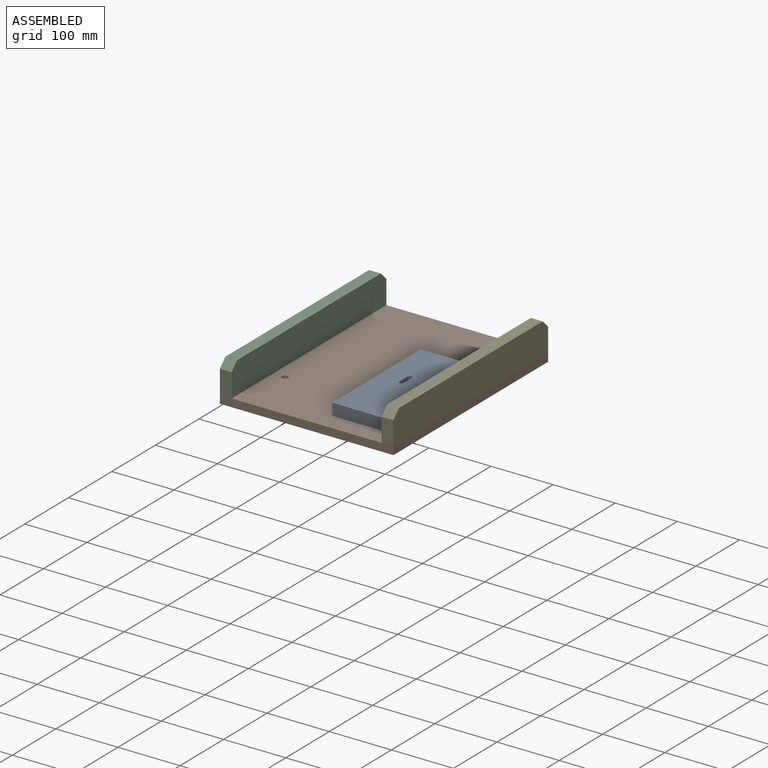
[diagram: assembled view]
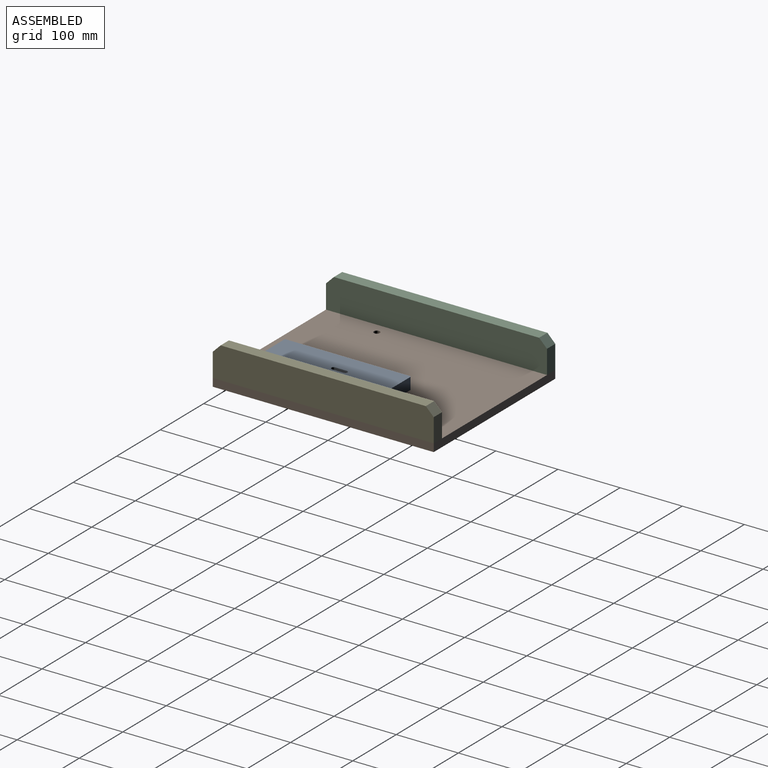
[diagram: assembled view, second angle]
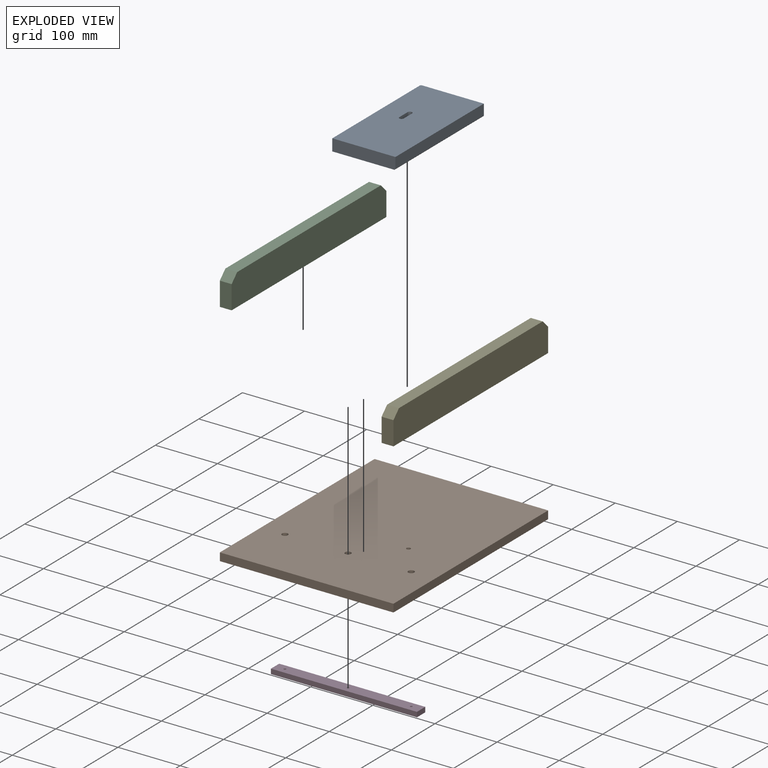
[diagram: exploded view]
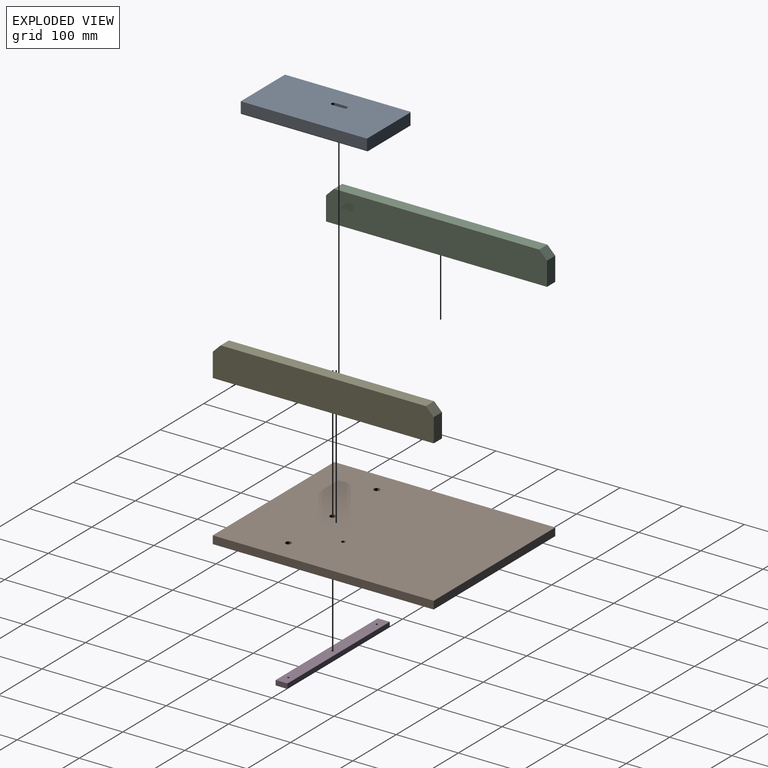
[diagram: exploded view, second angle]
ASSEMBLY  parts=5 mates=4
PART A: 12 faces, bbox 101.6x203.2x19.1 mm
  f0: plane 203.2x101.6mm, normal (0,0,1), area 20467.9mm2, adj f2,f3,f4,f5,f7,f8,f9,f10
  f1: plane 203.2x100.01mm, normal (0,0,-1), area 20145.3mm2, adj f2,f4,f5,f6,f7,f8,f9,f10
  f2: plane 101.6x19.05mm, normal (0,-1,0), area 1934.2mm2, adj f0,f1,f3,f5,f6
  f3: plane 203.2x17.46mm, normal (1,0,0), area 3548.4mm2, adj f0,f2,f4,f6
  f4: plane 100.01x19.05mm, normal (0,1,0), area 1904mm2, adj f0,f1,f3,f6,f7
  f5: plane 201.61x19.05mm, normal (-1,0,0), area 3840.7mm2, adj f0,f1,f2,f7
  f6: plane 203.2x1.59mm, normal (0.71,0,-0.71), area 456.2mm2, adj f1,f2,f3,f4
  f7: plane 19.05x1.59mm, normal (-0.71,0.71,0), area 42.8mm2, adj f0,f1,f4,f5
  f8: plane 19.05x19.05mm, normal (-1,0,0), area 362.9mm2, adj f0,f1,f9,f11
  f9: cylinder r=3.57mm len=19.05mm, axis (0,0,1), area 213.6mm2, adj f0,f1,f8,f10
  f10: plane 19.05x19.05mm, normal (1,0,0), area 362.9mm2, adj f0,f1,f9,f11
  f11: cylinder r=3.57mm len=19.05mm, axis (0,0,1), area 213.6mm2, adj f0,f1,f8,f10
PART B: 18 faces, bbox 279.4x355.6x12.7 mm
  f0: plane 355.6x12.7mm, normal (1,0,0), area 4516.1mm2, adj f1,f3,f4,f5
  f1: plane 279.4x12.7mm, normal (0,1,0), area 3548.4mm2, adj f0,f2,f4,f5
  f2: plane 355.6x12.7mm, normal (-1,0,0), area 4516.1mm2, adj f1,f3,f4,f5
  f3: plane 279.4x12.7mm, normal (0,-1,0), area 3548.4mm2, adj f0,f2,f4,f5
  f4: plane 355.6x279.4mm, normal (0,0,1), area 99109.2mm2, adj f0,f1,f2,f3,f8,f11,f14,f15
  f5: plane 355.6x279.4mm, normal (0,0,-1), area 99053.7mm2, adj f0,f1,f2,f3,f6,f9,f12,f17
  f6: cylinder r=2.55mm len=5.11mm, axis (0,0,1), area 76.4mm2, adj f5,f7
  f7: plane 9.53x9.53mm, normal (0,0,1), area 50.8mm2, adj f6,f8
  f8: cylinder r=4.76mm len=9.53mm, axis (0,0,1), area 237.5mm2, adj f4,f7
  f9: cylinder r=2.55mm len=5.11mm, axis (0,0,1), area 76.4mm2, adj f5,f10
  f10: plane 9.53x9.53mm, normal (0,0,1), area 50.8mm2, adj f9,f11
  f11: cylinder r=4.76mm len=9.53mm, axis (0,0,1), area 237.5mm2, adj f4,f10
  f12: cylinder r=2.55mm len=5.11mm, axis (0,0,1), area 76.4mm2, adj f5,f13
  f13: plane 9.53x9.53mm, normal (0,0,1), area 50.8mm2, adj f12,f14
  f14: cylinder r=4.76mm len=9.53mm, axis (0,0,1), area 237.5mm2, adj f4,f13
  f15: cylinder r=3.17mm len=9.53mm, axis (0,0,-1), area 190mm2, adj f4,f16
  f16: plane 17.46x17.46mm, normal (0,0,-1), area 207.8mm2, adj f15,f17
  f17: cylinder r=8.73mm len=17.46mm, axis (0,0,-1), area 174.2mm2, adj f5,f16
PART C: 8 faces, bbox 355.6x50.8x19.1 mm
  f0: plane 38.1x19.05mm, normal (-1,0,0), area 725.8mm2, adj f1,f4,f5,f7
  f1: plane 355.6x19.05mm, normal (0,-1,0), area 6774.2mm2, adj f0,f2,f4,f5
  f2: plane 38.1x19.05mm, normal (1,0,0), area 725.8mm2, adj f1,f4,f5,f6
  f3: plane 330.2x19.05mm, normal (0,1,0), area 6290.3mm2, adj f4,f5,f6,f7
  f4: plane 355.6x50.8mm, normal (0,0,1), area 17903.2mm2, adj f0,f1,f2,f3,f6,f7
  f5: plane 355.6x50.8mm, normal (0,0,-1), area 17903.2mm2, adj f0,f1,f2,f3,f6,f7
  f6: plane 19.05x12.7mm, normal (0.71,0.71,0), area 342.1mm2, adj f2,f3,f4,f5
  f7: plane 19.05x12.7mm, normal (-0.71,0.71,0), area 342.1mm2, adj f0,f3,f4,f5
PART D: 9 faces, bbox 235x19.1x7.9 mm
  f0: plane 234.95x7.94mm, normal (0,-1,0), area 1864.9mm2, adj f1,f3,f4,f5
  f1: plane 19.05x7.94mm, normal (1,0,0), area 151.2mm2, adj f0,f2,f4,f5
  f2: plane 234.95x7.94mm, normal (0,1,0), area 1864.9mm2, adj f1,f3,f4,f5
  f3: plane 19.05x7.94mm, normal (-1,0,0), area 151.2mm2, adj f0,f2,f4,f5
  f4: plane 234.95x19.05mm, normal (0,0,1), area 4447.7mm2, adj f0,f1,f2,f3,f6,f7,f8
  f5: plane 234.95x19.05mm, normal (0,0,-1), area 4447.7mm2, adj f0,f1,f2,f3,f6,f7,f8
  f6: cylinder r=1.73mm len=7.94mm, axis (0,0,-1), area 86.1mm2, adj f4,f5
  f7: cylinder r=1.73mm len=7.94mm, axis (0,0,-1), area 86.1mm2, adj f4,f5
  f8: cylinder r=1.73mm len=7.94mm, axis (0,0,-1), area 86.1mm2, adj f4,f5
PART E: same geometry as C
PLACE A t=(-19.05,-63.5,12.7)mm
PLACE B at identity fixed
PLACE C rot(axis=(0.58,0.58,0.58),120deg) t=(-279.4,-95.25,12.7)mm
PLACE D rot(axis=(1,0,0),180deg) t=(-22.22,9.52,0)mm
PLACE E rot(axis=(0.58,0.58,0.58),120deg) t=(-19.05,-95.25,12.7)mm
MATE fastened A.f1 <-> B.f4  axis (0,0,-1) through (-19.05,139.7,12.7)mm
MATE fastened D.f5 <-> B.f5  axis (0,0,-1) through (0,0,0)mm
MATE fastened E.f1 <-> B.f4  axis (0,0,1) through (0,-95.25,12.7)mm
MATE fastened B.f4 <-> C.f1  axis (0,0,1) through (-279.4,-95.25,12.7)mm
